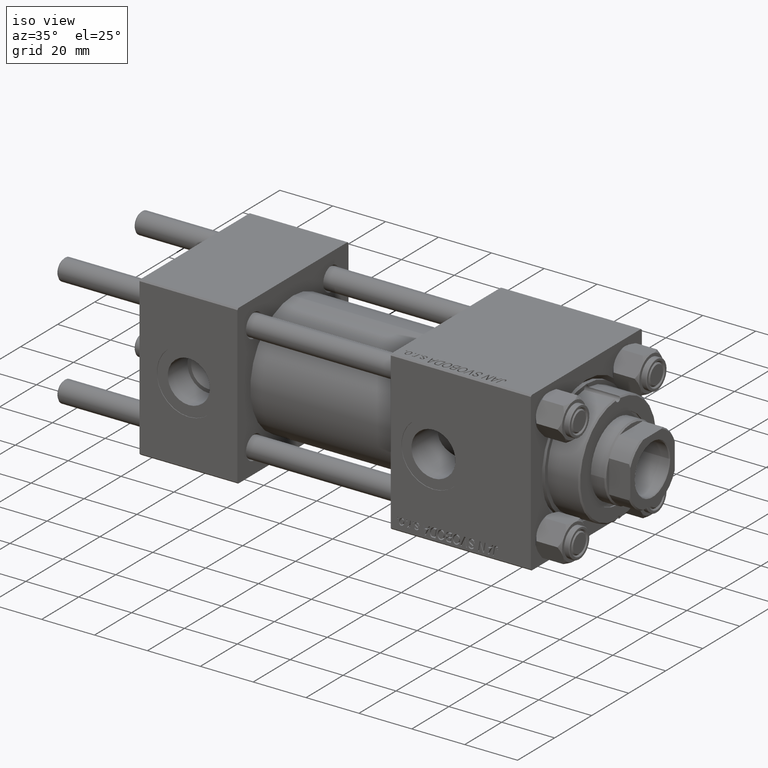
[diagram: clean part render]
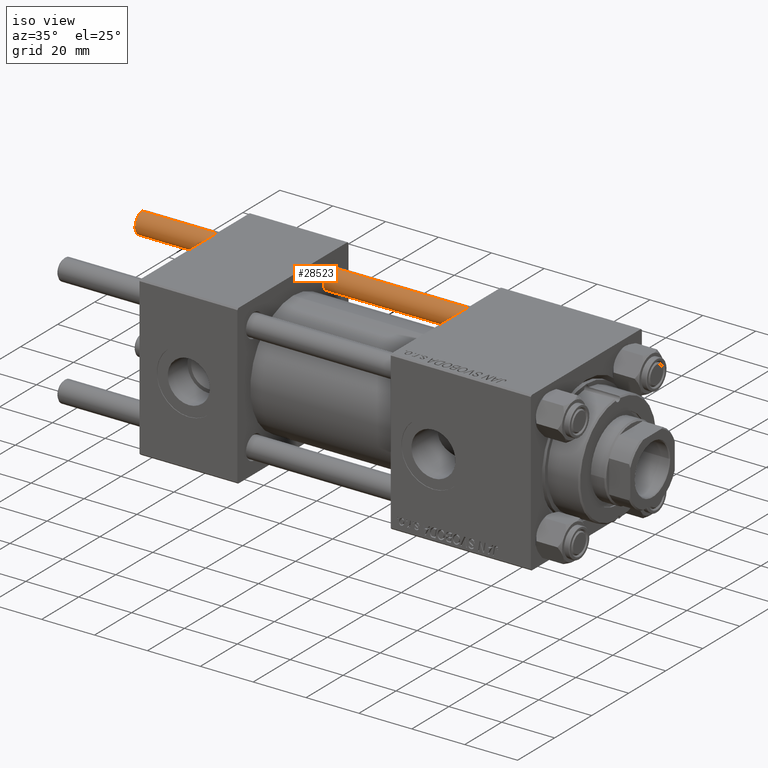
[diagram: same view with one face highlighted and labeled with its STEP entity id]
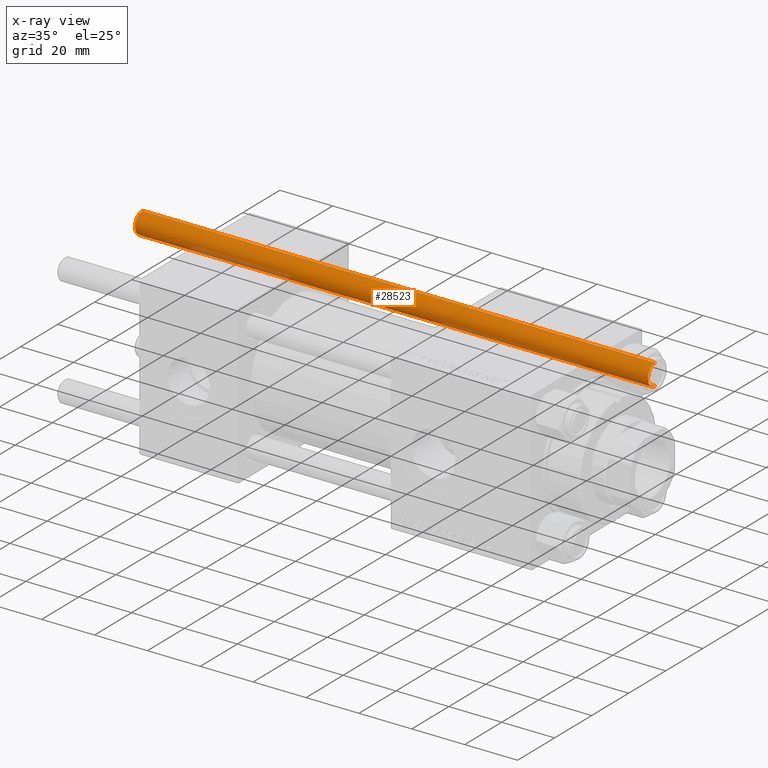
[diagram: x-ray of the same camera — body ghosted, the highlighted face saturated]
A machine part, iso view. The second image highlights one B-rep face of the part: STEP entity #28523.
The next image is the same camera in x-ray: the body ghosted, the highlighted face saturated — about 7% of this face is hidden behind the body in this view.
In plain terms, the highlighted cylindrical surface (edge-blend (fillet) strip) has radius 4 mm, axis along (-1, -0, -0).
Its self-contained STEP definition (entity closure, byte-faithful):
#2600 = DIRECTION ( 'NONE',  ( -1.000000000000000000, 0.000000000000000000, 0.000000000000000000 ) ) ;
#4720 = CARTESIAN_POINT ( 'NONE',  ( -4.000000000000000000, 0.000000000000000000, 195.0000000000000000 ) ) ;
#4918 = VERTEX_POINT ( 'NONE', #13160 ) ;
#5191 = VECTOR ( 'NONE', #43784, 1000.000000000000000 ) ;
#6144 = DIRECTION ( 'NONE',  ( -0.000000000000000000, -0.000000000000000000, 1.000000000000000000 ) ) ;
#6596 = CARTESIAN_POINT ( 'NONE',  ( 4.000000000000000000, 4.898587196589412829E-16, 194.5000000000000568 ) ) ;
#9305 = VERTEX_POINT ( 'NONE', #27339 ) ;
#10703 = CARTESIAN_POINT ( 'NONE',  ( -4.000000000000000000, 0.000000000000000000, 0.5000000000000004441 ) ) ;
#13160 = CARTESIAN_POINT ( 'NONE',  ( -4.000000000000000000, 0.000000000000000000, 194.5000000000000568 ) ) ;
#15940 = ORIENTED_EDGE ( 'NONE', *, *, #46241, .F. ) ;
#18307 = DIRECTION ( 'NONE',  ( 1.000000000000000000, 0.000000000000000000, 0.000000000000000000 ) ) ;
#21762 = CARTESIAN_POINT ( 'NONE',  ( 0.000000000000000000, 0.000000000000000000, 194.5000000000000568 ) ) ;
#23082 = EDGE_CURVE ( 'NONE', #50179, #9305, #42844, .T. ) ;
#25558 = AXIS2_PLACEMENT_3D ( 'NONE', #21762, #46828, #18307 ) ;
#26978 = DIRECTION ( 'NONE',  ( 1.000000000000000000, 0.000000000000000000, 0.000000000000000000 ) ) ;
#27339 = CARTESIAN_POINT ( 'NONE',  ( 4.000000000000000000, 4.898587196589412829E-16, 0.5000000000000004441 ) ) ;
#27402 = DIRECTION ( 'NONE',  ( -0.000000000000000000, -0.000000000000000000, -1.000000000000000000 ) ) ;
#28523 = ADVANCED_FACE ( 'NONE', ( #43242 ), #38755, .T. ) ;
#28714 = LINE ( 'NONE', #4720, #28796 ) ;
#28796 = VECTOR ( 'NONE', #36651, 1000.000000000000000 ) ;
#29428 = ORIENTED_EDGE ( 'NONE', *, *, #23082, .T. ) ;
#30368 = EDGE_LOOP ( 'NONE', ( #15940, #39847, #43592, #29428 ) ) ;
#30944 = CARTESIAN_POINT ( 'NONE',  ( 0.000000000000000000, 0.000000000000000000, 0.5000000000000004441 ) ) ;
#31092 = CARTESIAN_POINT ( 'NONE',  ( 0.000000000000000000, 0.000000000000000000, 195.0000000000000000 ) ) ;
#35088 = LINE ( 'NONE', #36119, #5191 ) ;
#35307 = VERTEX_POINT ( 'NONE', #6596 ) ;
#36119 = CARTESIAN_POINT ( 'NONE',  ( 4.000000000000000000, 4.898587196589412829E-16, 195.0000000000000000 ) ) ;
#36651 = DIRECTION ( 'NONE',  ( -0.000000000000000000, -0.000000000000000000, -1.000000000000000000 ) ) ;
#38755 = CYLINDRICAL_SURFACE ( 'NONE', #43752, 4.000000000000000000 ) ;
#39847 = ORIENTED_EDGE ( 'NONE', *, *, #51423, .T. ) ;
#40326 = AXIS2_PLACEMENT_3D ( 'NONE', #30944, #6144, #26978 ) ;
#42844 = CIRCLE ( 'NONE', #40326, 4.000000000000000000 ) ;
#43242 = FACE_OUTER_BOUND ( 'NONE', #30368, .T. ) ;
#43592 = ORIENTED_EDGE ( 'NONE', *, *, #47140, .T. ) ;
#43752 = AXIS2_PLACEMENT_3D ( 'NONE', #31092, #27402, #2600 ) ;
#43784 = DIRECTION ( 'NONE',  ( -0.000000000000000000, -0.000000000000000000, -1.000000000000000000 ) ) ;
#46241 = EDGE_CURVE ( 'NONE', #35307, #9305, #35088, .T. ) ;
#46828 = DIRECTION ( 'NONE',  ( 0.000000000000000000, 0.000000000000000000, -1.000000000000000000 ) ) ;
#47140 = EDGE_CURVE ( 'NONE', #4918, #50179, #28714, .T. ) ;
#48313 = CIRCLE ( 'NONE', #25558, 4.000000000000000000 ) ;
#50179 = VERTEX_POINT ( 'NONE', #10703 ) ;
#51423 = EDGE_CURVE ( 'NONE', #35307, #4918, #48313, .T. ) ;